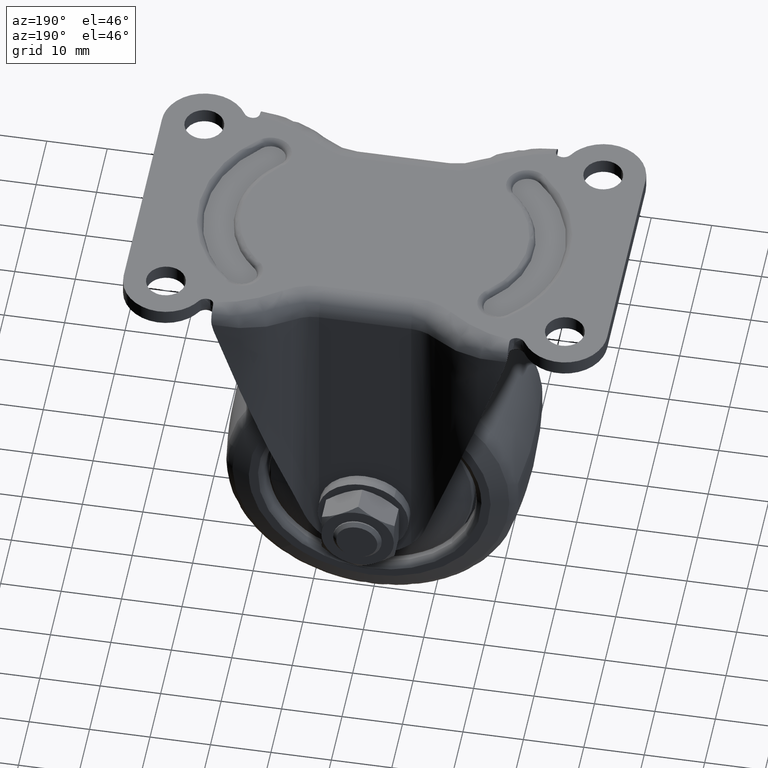
[diagram: clean part render]
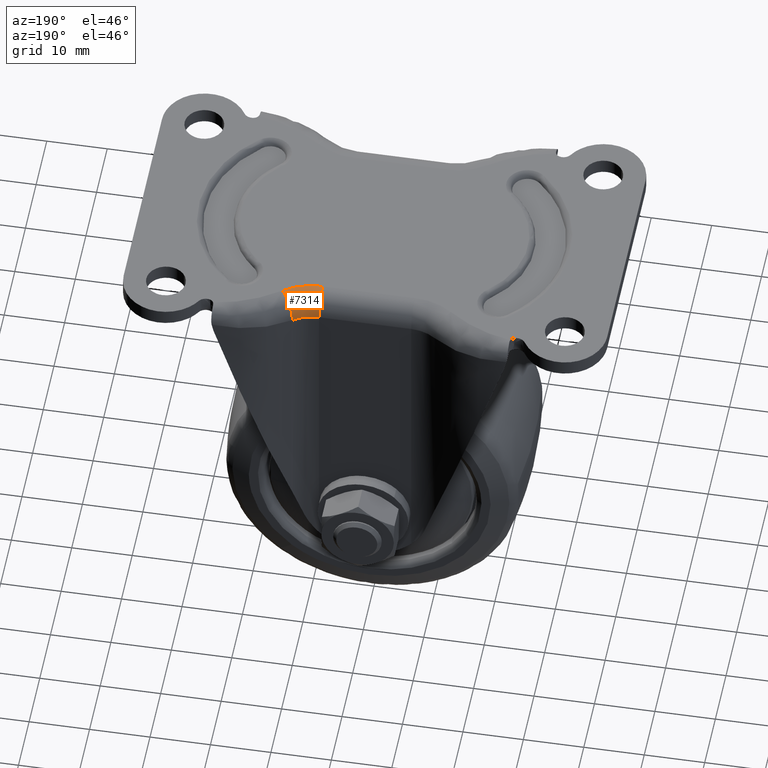
[diagram: same view with one face highlighted and labeled with its STEP entity id]
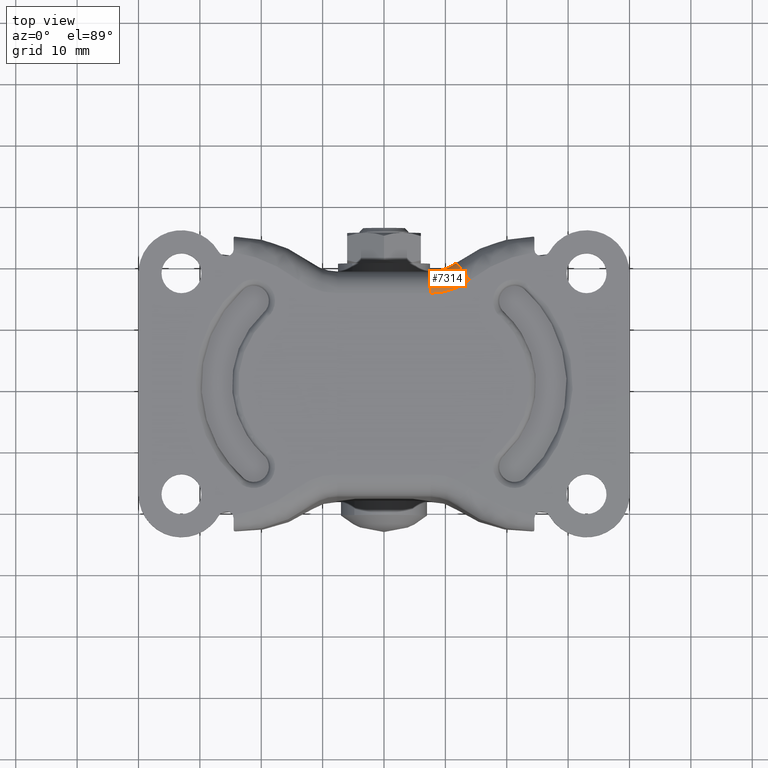
[diagram: same view with one face highlighted and labeled with its STEP entity id]
A machine part, auxiliary view. The second image highlights one B-rep face of the part: STEP entity #7314.
A second angle (top view) of the same face is appended — the face is thin or edge-on in the first view.
In plain terms, the highlighted face is a freeform B-spline surface patch.
Its self-contained STEP definition (entity closure, byte-faithful):
#7202=CARTESIAN_POINT('',(11.779543599850500,19.741035465962948,-3.600000000000050));
#7203=VERTEX_POINT('',#7202);
#7227=CARTESIAN_POINT('',(13.947199205309801,16.866793100378452,0.0));
#7228=VERTEX_POINT('',#7227);
#7229=CARTESIAN_POINT('',(11.779543599850500,19.741035465962948,-3.600000000000050));
#7230=CARTESIAN_POINT('',(11.779447326593480,19.741163121238682,-3.246557484352413));
#7231=CARTESIAN_POINT('',(11.834850490258971,19.667700288954052,-2.628153983210511));
#7232=CARTESIAN_POINT('',(12.073788465571701,19.350876135863881,-1.702025526942610));
#7233=CARTESIAN_POINT('',(12.410455085281690,18.904466909687979,-1.003444020402492));
#7234=CARTESIAN_POINT('',(12.882843468054039,18.278094943885819,-0.421649921148822));
#7235=CARTESIAN_POINT('',(13.379697936896010,17.619281726380301,-0.079851980807194));
#7236=CARTESIAN_POINT('',(13.769864575406510,17.101933177459909,0.000039983610169));
#7237=CARTESIAN_POINT('',(13.947199205309801,16.866793100378452,0.0));
#7238=B_SPLINE_CURVE_WITH_KNOTS('',3,(#7229,#7230,#7231,#7232,#7233,#7234,#7235,#7236,#7237),.UNSPECIFIED.,.F.,.U.,(4,1,1,1,1,1,4),(0.000000143147435,1.060304332449968,1.855572507835826,3.004214631016607,3.711086163468373,4.771448814203848,5.655023306658515),.UNSPECIFIED.);
#7239=EDGE_CURVE('',#7203,#7228,#7238,.T.);
#7260=CARTESIAN_POINT('',(11.956905965146856,19.868197284915905,-3.850333511253501));
#7261=CARTESIAN_POINT('',(9.963595424171206,18.263699182582066,-3.850333511253502));
#7262=CARTESIAN_POINT('',(7.406031851384539,18.344752524969643,-3.850333511253501));
#7263=CARTESIAN_POINT('',(11.776414002832071,20.092427236026541,0.279133953395005));
#7264=CARTESIAN_POINT('',(9.866153686625639,18.554779694757510,0.279133953395005));
#7265=CARTESIAN_POINT('',(7.415149641426441,18.632455992693043,0.279133953395006));
#7266=CARTESIAN_POINT('',(14.365752522099211,16.875623328872035,-0.008714299302285));
#7267=CARTESIAN_POINT('',(11.264053300410248,14.378937331930301,-0.008714299302285));
#7268=CARTESIAN_POINT('',(7.284345783662928,14.505060725064903,-0.008714299302285));
#7276=(BOUNDED_SURFACE()B_SPLINE_SURFACE(2,2,((#7260,#7263,#7266),(#7261,#7264,#7267),(#7262,#7265,#7268)),.UNSPECIFIED.,.F.,.F.,.U.)B_SPLINE_SURFACE_WITH_KNOTS((3,3),(3,3),(0.0,7.707565013354981),(0.0,6.560546244878166),.UNSPECIFIED.)GEOMETRIC_REPRESENTATION_ITEM()RATIONAL_B_SPLINE_SURFACE(((0.863816884450023,0.566858209911293,0.863816917086166),(0.808753391364519,0.530724170760409,0.808753421920290),(0.861073425062360,0.565057883354299,0.861073457594851)))REPRESENTATION_ITEM('')SURFACE());
#7277=CARTESIAN_POINT('',(7.624870356053560,18.350000000000001,-3.600000000000050));
#7278=VERTEX_POINT('',#7277);
#7279=CARTESIAN_POINT('',(7.624870356053560,14.750000000000000,0.0));
#7280=VERTEX_POINT('',#7279);
#7281=CARTESIAN_POINT('',(7.624870356053560,18.350000000000001,-3.600000000000050));
#7282=CARTESIAN_POINT('',(7.624870356053576,18.350203971403879,-3.217088545103490));
#7283=CARTESIAN_POINT('',(7.624870356053549,18.259867322542959,-2.657635463919229));
#7284=CARTESIAN_POINT('',(7.624870356053571,17.954643570115241,-1.920955279632367));
#7285=CARTESIAN_POINT('',(7.624870356053557,17.606345164695860,-1.370877536925361));
#7286=CARTESIAN_POINT('',(7.624870356053567,17.116587169239381,-0.856478649427718));
#7287=CARTESIAN_POINT('',(7.624870356053546,16.535883609208561,-0.447499703762283));
#7288=CARTESIAN_POINT('',(7.624870356053585,15.751267077633550,-0.099644300537994));
#7289=CARTESIAN_POINT('',(7.624870356053530,15.132909542917130,0.000209982899257));
#7290=CARTESIAN_POINT('',(7.624870356053560,14.750000000000000,0.0));
#7291=B_SPLINE_CURVE_WITH_KNOTS('',3,(#7281,#7282,#7283,#7284,#7285,#7286,#7287,#7288,#7289,#7290),.UNSPECIFIED.,.F.,.U.,(4,1,1,1,1,1,1,4),(0.000000097938585,1.148666018291550,1.678838468419131,2.385738121074075,3.092559790230723,3.799441102142101,4.506342759252707,5.655008679605874),.UNSPECIFIED.);
#7292=EDGE_CURVE('',#7278,#7280,#7291,.T.);
#7293=ORIENTED_EDGE('',*,*,#7292,.T.);
#7294=CARTESIAN_POINT('',(13.947199205309801,16.866793100378452,0.0));
#7295=CARTESIAN_POINT('',(13.270197573426630,16.355950104436172,0.0));
#7296=CARTESIAN_POINT('',(11.883903856562020,15.553387612997360,0.0));
#7297=CARTESIAN_POINT('',(9.709751827730294,14.885948945076731,0.0));
#7298=CARTESIAN_POINT('',(8.296273953313596,14.749939334227999,0.0));
#7299=CARTESIAN_POINT('',(7.624870356053560,14.750000000000000,0.0));
#7300=B_SPLINE_CURVE_WITH_KNOTS('',3,(#7294,#7295,#7296,#7297,#7298,#7299),.UNSPECIFIED.,.F.,.U.,(4,1,1,4),(0.000000024549332,2.544282919903072,4.770508118777347,6.784729430389639),.UNSPECIFIED.);
#7301=EDGE_CURVE('',#7228,#7280,#7300,.T.);
#7302=ORIENTED_EDGE('',*,*,#7301,.F.);
#7303=ORIENTED_EDGE('',*,*,#7239,.F.);
#7304=CARTESIAN_POINT('',(7.624870356053560,18.350000000000001,-3.600000000000050));
#7305=CARTESIAN_POINT('',(8.344791967839191,18.349603128230608,-3.600000000000045));
#7306=CARTESIAN_POINT('',(9.830667043898277,18.584869973559169,-3.600000000000067));
#7307=CARTESIAN_POINT('',(11.167999115781249,19.279153080169049,-3.600000000000030));
#7308=CARTESIAN_POINT('',(11.779543599850500,19.741035465962948,-3.600000000000050));
#7309=B_SPLINE_CURVE_WITH_KNOTS('',3,(#7304,#7305,#7306,#7307,#7308),.UNSPECIFIED.,.F.,.U.,(4,1,4),(0.000000026410135,2.159627056303725,4.458536482828035),.UNSPECIFIED.);
#7310=EDGE_CURVE('',#7278,#7203,#7309,.T.);
#7311=ORIENTED_EDGE('',*,*,#7310,.F.);
#7312=EDGE_LOOP('',(#7293,#7302,#7303,#7311));
#7313=FACE_OUTER_BOUND('',#7312,.T.);
#7314=ADVANCED_FACE('',(#7313),#7276,.T.);